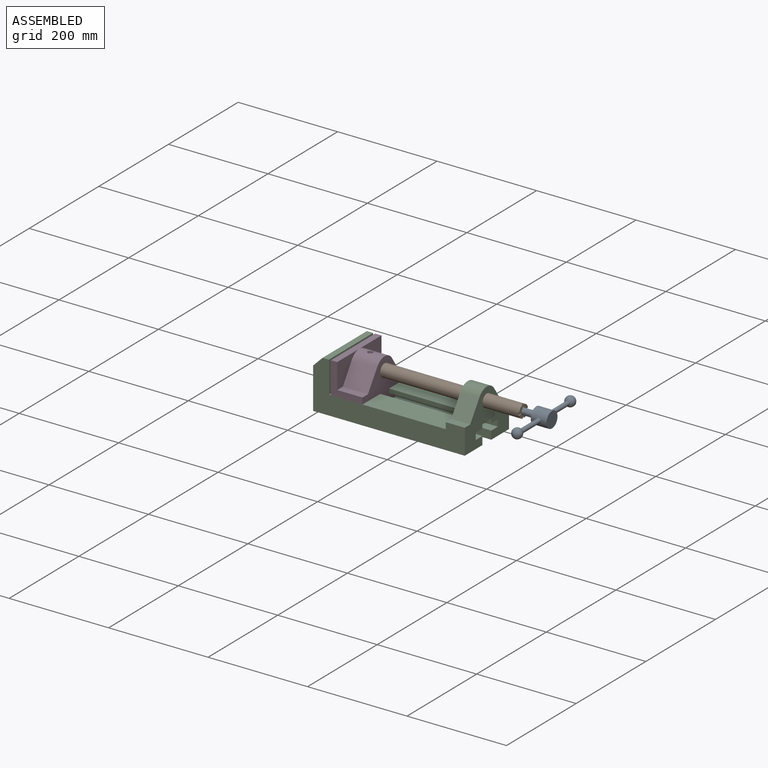
[diagram: assembled view]
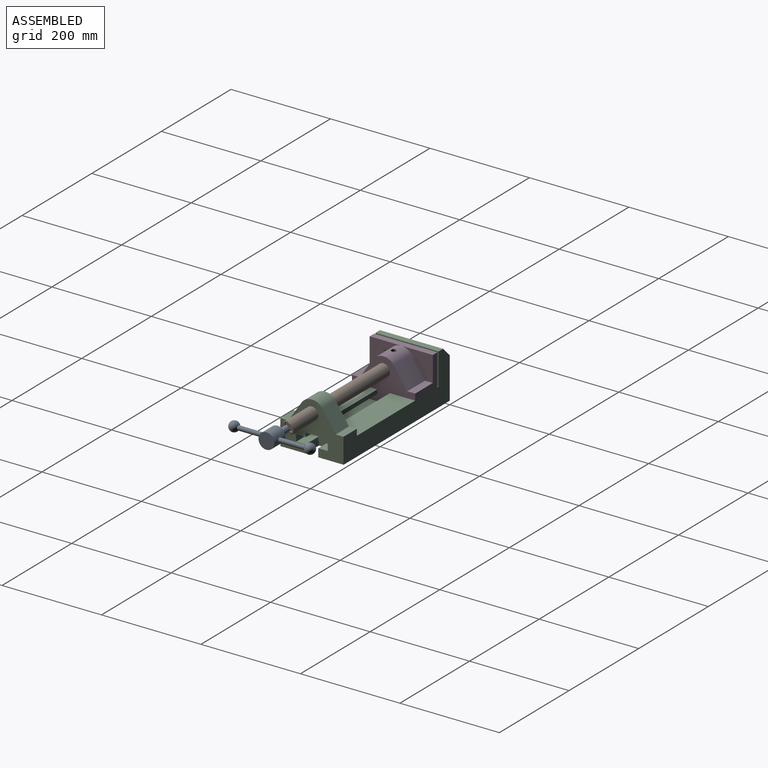
[diagram: assembled view, second angle]
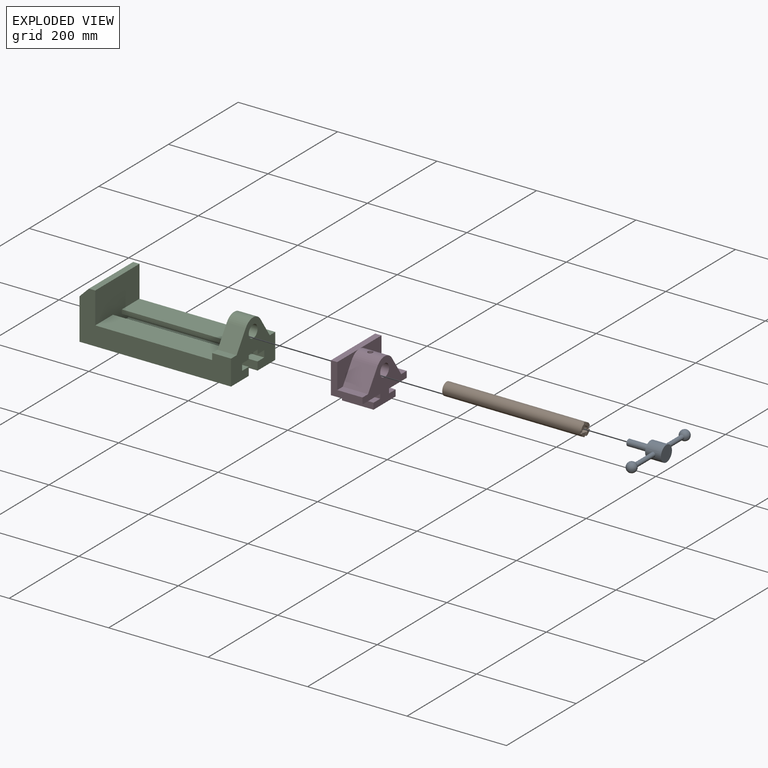
[diagram: exploded view]
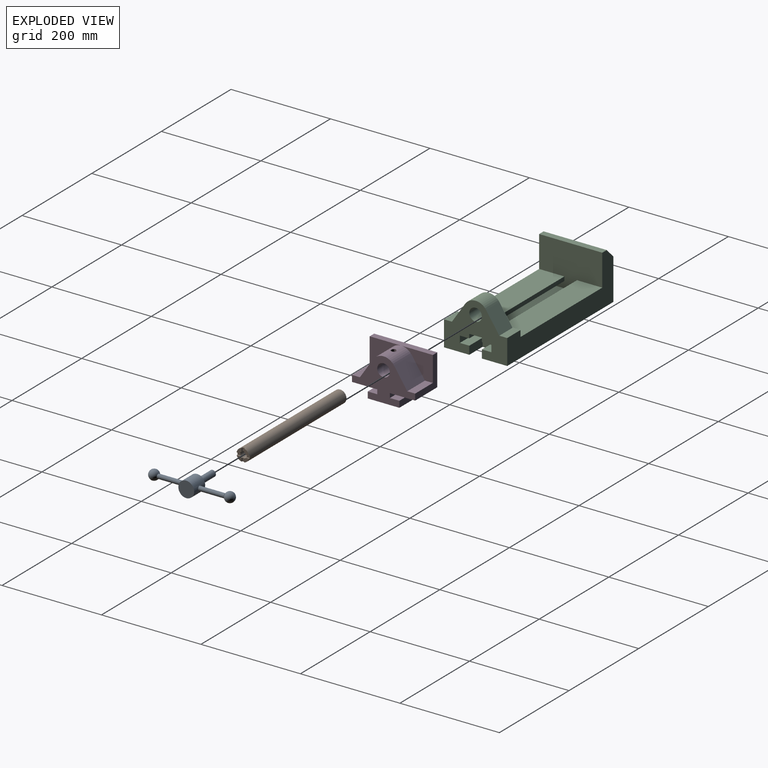
[diagram: exploded view, second angle]
ASSEMBLY  parts=4 mates=3
PART A: 12 faces, bbox 31.8x152.4x76.2 mm
  f0: cylinder r=4.45mm len=52.03mm, axis (0,-1,0), area 1434.6mm2, adj f1,f2,f3
  f1: cylinder r=15.88mm len=31.75mm, axis (0,0,-1), area 3041.5mm2, adj f0,f4,f5,f6
  f2: torus R=0.17mm, axis (-1,0,0), area 32.8mm2, adj f0,f3
  f3: torus R=0.17mm, axis (-1,0,0), area 32.8mm2, adj f0,f2
  f4: plane 31.75x31.75mm, normal (0,0,1), area 791.7mm2, adj f1
  f5: plane 31.75x31.75mm, normal (0,0,-1), area 665.1mm2, adj f1,f7
  f6: cylinder r=4.45mm len=52.03mm, axis (0,1,0), area 1434.5mm2, adj f1,f8
  f7: cylinder r=6.35mm len=44.45mm, axis (0,0,1), area 1773.5mm2, adj f5,f9
  f8: torus R=0.17mm, axis (-1,0,0), area 65.5mm2, adj f6
  f9: plane 12.7x12.7mm, normal (0,0,-1), area 126.7mm2, adj f7
  f10: torus R=0.17mm, axis (-1,0,0), area 1264mm2
  f11: torus R=0.17mm, axis (-1,0,0), area 1264mm2
PART B: 20 faces, bbox 25.4x279.4x25.4 mm
  f0: plane 10.44x10mm, normal (0,-1,0), area 65.8mm2, adj f4,f9,f12,f18
  f1: plane 10.44x10mm, normal (0,-1,0), area 65.8mm2, adj f4,f13,f15,f18
  f2: plane 9.78x9.36mm, normal (0,-1,0), area 58.7mm2, adj f4,f6,f16,f18
  f3: plane 9.78x9.36mm, normal (0,-1,0), area 58.7mm2, adj f4,f7,f10,f18
  f4: cylinder r=12.7mm len=279.4mm, axis (0,1,0), area 22243.1mm2, adj f0,f1,f2,f3,f5,f6,f7,f8
  f5: plane 25.4x25.4mm, normal (0,1,0), area 506.7mm2, adj f4
  f6: plane 6.62x2.54mm, normal (1,0,0), area 16.8mm2, adj f2,f4,f8,f18
  f7: plane 6.62x2.54mm, normal (-1,0,0), area 16.8mm2, adj f3,f4,f8,f18
  f8: plane 6.88x5.08mm, normal (0,-1,0), area 32.7mm2, adj f4,f6,f7,f18
  f9: plane 6.52x2.54mm, normal (0,0,-1), area 16.5mm2, adj f0,f4,f11,f18
  f10: plane 6.77x2.54mm, normal (0,0,1), area 17.2mm2, adj f3,f4,f11,f18
  f11: plane 7.15x5.08mm, normal (0,-1,0), area 32.8mm2, adj f4,f9,f10,f18
  f12: plane 6.62x2.54mm, normal (-1,0,0), area 16.8mm2, adj f0,f4,f14,f18
  f13: plane 6.62x2.54mm, normal (1,0,0), area 16.8mm2, adj f1,f4,f14,f18
  f14: plane 6.88x5.08mm, normal (0,-1,0), area 32.7mm2, adj f4,f12,f13,f18
  f15: plane 6.52x2.54mm, normal (0,0,-1), area 16.5mm2, adj f1,f4,f17,f18
  f16: plane 6.77x2.54mm, normal (0,0,1), area 17.2mm2, adj f2,f4,f17,f18
  f17: plane 7.15x5.08mm, normal (0,-1,0), area 32.8mm2, adj f4,f15,f16,f18
  f18: cylinder r=6.35mm len=19.05mm, axis (0,-1,0), area 706.8mm2, adj f0,f1,f2,f3,f6,f7,f8,f9
  f19: plane 12.7x12.7mm, normal (0,-1,0), area 126.7mm2, adj f18
PART C: 28 faces, bbox 304.8x127x101.6 mm
  f0: plane 127x101.6mm, normal (1,0,0), area 7520.6mm2, adj f8,f9,f10,f11,f12,f13,f14,f15
  f1: plane 127x63.5mm, normal (-1,0,0), area 4157.7mm2, adj f2,f3,f9,f10,f18,f19,f20,f21
  f2: plane 234.95x50.8mm, normal (0,0,1), area 11935.5mm2, adj f1,f4,f9,f11
  f3: plane 234.95x50.8mm, normal (0,0,1), area 11935.5mm2, adj f1,f4,f10,f17
  f4: plane 127x85.09mm, normal (1,0,0), area 9120.9mm2, adj f2,f3,f5,f9,f10,f11,f12,f13
  f5: plane 127x12.7mm, normal (0,0,1), area 1612.9mm2, adj f4,f6,f9,f10
  f6: plane 127x19.05mm, normal (-0.71,0,0.71), area 3421.5mm2, adj f5,f7,f9,f10
  f7: plane 127x82.55mm, normal (-1,0,0), area 10483.9mm2, adj f6,f8,f9,f10
  f8: plane 304.8x127mm, normal (0,0,-1), area 37741.9mm2, adj f0,f7,f9,f10,f25,f26,f27
  f9: plane 304.8x101.6mm, normal (0,-1,0), area 13931.4mm2, adj f0,f1,f2,f4,f5,f6,f7,f8
  f10: plane 304.8x101.6mm, normal (0,1,0), area 13931.4mm2, adj f0,f1,f3,f4,f5,f6,f7,f8
  f11: plane 273.05x8.26mm, normal (0,1,0), area 2254mm2, adj f0,f2,f4,f12,f18
  f12: plane 273.05x19.05mm, normal (0,0,-1), area 5201.6mm2, adj f0,f4,f11,f13
  f13: plane 273.05x13.34mm, normal (0,1,0), area 3641.1mm2, adj f0,f4,f12,f14
  f14: plane 273.05x63.5mm, normal (0,0,1), area 16370.9mm2, adj f0,f4,f13,f15,f25,f26,f27
  f15: plane 273.05x13.34mm, normal (0,-1,0), area 3641.1mm2, adj f0,f4,f14,f16
  f16: plane 273.05x19.05mm, normal (0,0,-1), area 5201.6mm2, adj f0,f4,f15,f17
  f17: plane 273.05x8.26mm, normal (0,-1,0), area 2254mm2, adj f0,f3,f4,f16,f18
  f18: plane 38.1x25.4mm, normal (0,0,-1), area 967.7mm2, adj f0,f1,f11,f17
  f19: plane 38.1x15.88mm, normal (0,0,1), area 604.8mm2, adj f0,f1,f9,f21
  f20: cylinder r=25.4mm len=42.19mm, axis (1,0,0), area 1896.6mm2, adj f0,f1,f21,f22
  f21: plane 39.55x38.1mm, normal (0,-0.83,0.56), area 1814.5mm2, adj f0,f1,f19,f20
  f22: plane 39.55x38.1mm, normal (0,0.83,0.56), area 1814.5mm2, adj f0,f1,f20,f23
  f23: plane 38.1x15.88mm, normal (0,0,1), area 604.8mm2, adj f0,f1,f10,f22
  f24: cylinder r=12.7mm len=38.1mm, axis (1,0,0), area 3040.2mm2, adj f0,f1
  f25: plane 38.1x16.51mm, normal (0,1,0), area 629mm2, adj f0,f8,f14,f27
  f26: plane 38.1x16.51mm, normal (0,-1,0), area 629mm2, adj f0,f8,f14,f27
  f27: plane 25.4x16.51mm, normal (1,0,0), area 419.4mm2, adj f8,f14,f25,f26
PART D: 23 faces, bbox 63.5x127x85.1 mm
  f0: cylinder r=12.7mm len=63.5mm, axis (-1,0,0), area 4984.4mm2, adj f17,f21,f22
  f1: cylinder r=25.4mm len=50.8mm, axis (-1,0,0), area 2447.4mm2, adj f2,f16,f17,f18,f19,f22
  f2: plane 50.8x39.55mm, normal (0,-0.83,0.56), area 2419.3mm2, adj f1,f3,f17,f19
  f3: plane 50.8x15.88mm, normal (0,0,1), area 806.4mm2, adj f2,f4,f17,f19
  f4: plane 63.5x63.5mm, normal (0,-1,0), area 1451.6mm2, adj f3,f5,f17,f19,f20,f21
  f5: plane 63.5x50.8mm, normal (0,0,-1), area 3225.8mm2, adj f4,f6,f17,f21
  f6: plane 63.5x8.89mm, normal (0,-1,0), area 564.5mm2, adj f5,f7,f17,f21
  f7: plane 63.5x19.05mm, normal (0,0,1), area 1209.7mm2, adj f6,f8,f17,f21
  f8: plane 63.5x12.7mm, normal (0,-1,0), area 806.4mm2, adj f7,f9,f17,f21
  f9: plane 63.5x63.5mm, normal (0,0,-1), area 4032.3mm2, adj f8,f10,f17,f21
  f10: plane 63.5x12.7mm, normal (0,1,0), area 806.5mm2, adj f9,f11,f17,f21
  f11: plane 63.5x19.05mm, normal (0,0,1), area 1209.7mm2, adj f10,f12,f17,f21
  f12: plane 63.5x8.89mm, normal (0,1,0), area 564.5mm2, adj f11,f13,f17,f21
  f13: plane 63.5x50.8mm, normal (0,0,-1), area 3225.8mm2, adj f12,f14,f17,f21
  f14: plane 63.5x63.5mm, normal (0,1,0), area 1451.6mm2, adj f13,f15,f17,f18,f20,f21
  f15: plane 50.8x15.88mm, normal (0,0,1), area 806.5mm2, adj f14,f16,f17,f18
  f16: plane 50.8x39.55mm, normal (0,0.83,0.56), area 2419.3mm2, adj f1,f15,f17,f18
  f17: plane 127x85.09mm, normal (1,0,0), area 5190mm2, adj f0,f1,f2,f3,f4,f5,f6,f7
  f18: plane 63.5x50.8mm, normal (1,0,0), area 1700mm2, adj f1,f14,f15,f16,f20
  f19: plane 63.5x50.8mm, normal (1,0,0), area 1700mm2, adj f1,f2,f3,f4,f20
  f20: plane 127x12.7mm, normal (0,0,1), area 1612.9mm2, adj f4,f14,f18,f19,f21
  f21: plane 127x85.09mm, normal (-1,0,0), area 8590mm2, adj f0,f4,f5,f6,f7,f8,f9,f10
  f22: cylinder r=5.08mm len=13.76mm, axis (0,0,1), area 413.9mm2, adj f0,f1
PLACE A rot(axis=(0,1,0),90deg) t=(404.02,-63.5,76.2)mm
PLACE B rot(axis=(0,0,1),90deg) t=(99.22,-63.5,76.2)mm
PLACE C at identity fixed
PLACE D t=(48.42,-127,16.51)mm
MATE fastened A.f1 <-> B.f4  axis (1,0,0) through (359.57,-63.5,76.2)mm
MATE pin_slot B.f4 <-> D.f0  axis (-1,0,0) through (99.22,-63.5,76.2)mm
MATE slider D.f0 <-> C.f20  axis (1,0,0) through (99.22,-63.5,76.2)mm
